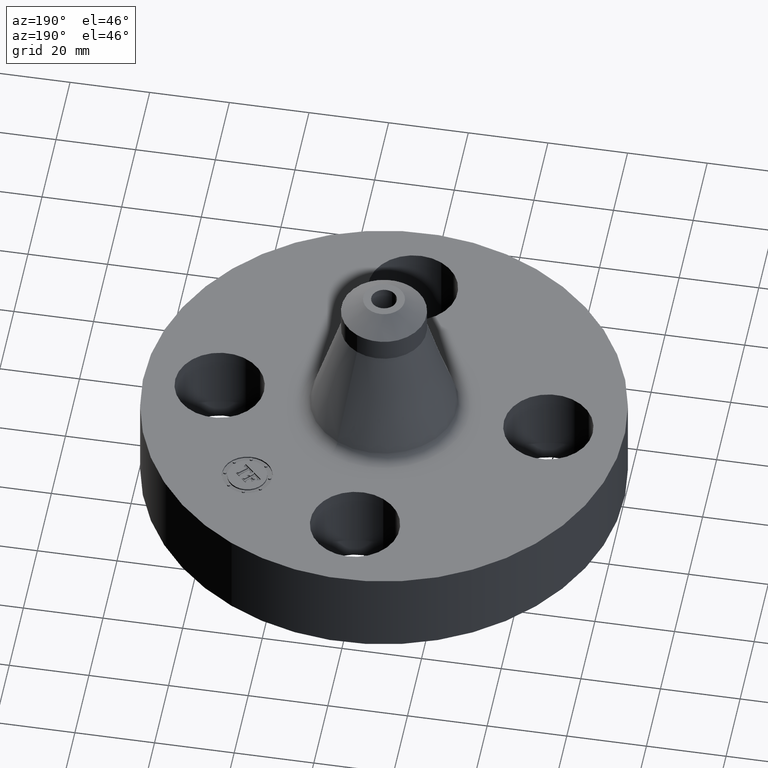
[diagram: clean part render]
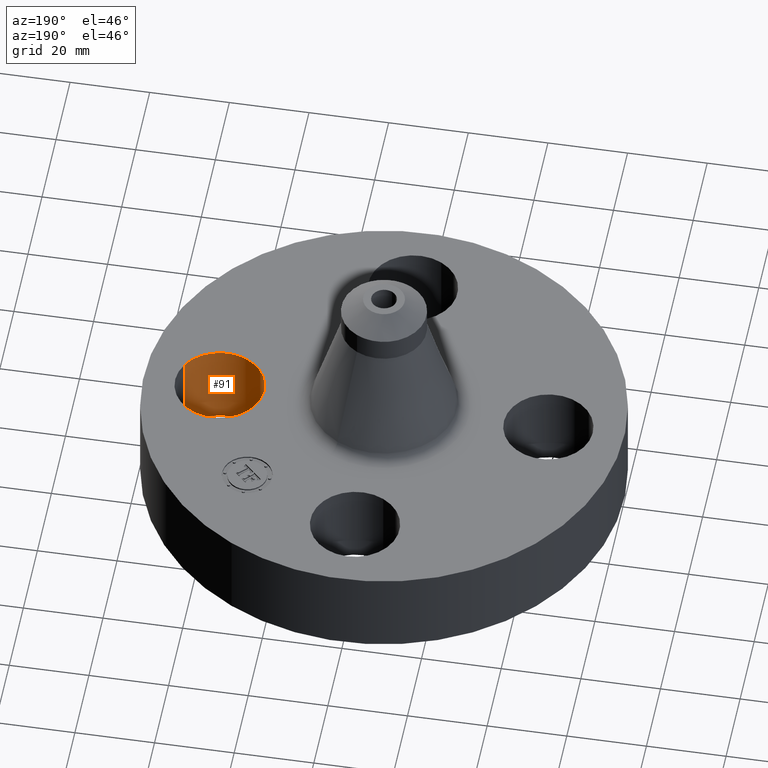
[diagram: same view with one face highlighted and labeled with its STEP entity id]
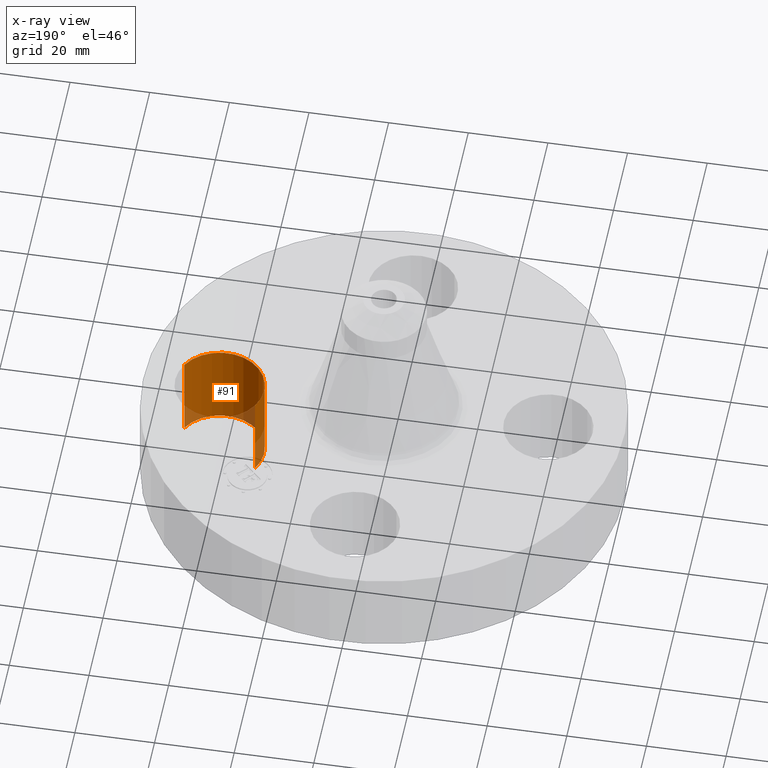
[diagram: x-ray of the same camera — body ghosted, the highlighted face saturated]
A machine part, auxiliary view. The second image highlights one B-rep face of the part: STEP entity #91.
The next image is the same camera in x-ray: the body ghosted, the highlighted face saturated — about 13% of this face is hidden behind the body in this view.
In plain terms, the highlighted cylindrical surface (partial cylindrical patch) has radius 11.176 mm, axis along (0, -0, -1).
Its self-contained STEP definition (entity closure, byte-faithful):
#38=AXIS2_PLACEMENT_3D('Cylinder Axis2P3D',#35,#36,#37) ;
#77=AXIS2_PLACEMENT_3D('Circle Axis2P3D',#75,#76,$) ;
#82=AXIS2_PLACEMENT_3D('Circle Axis2P3D',#80,#81,$) ;
#35=CARTESIAN_POINT('Axis2P3D Location',(1.62500000001,0.,0.87606299213)) ;
#40=CARTESIAN_POINT('Line Origine',(1.23886367277,0.210947236987,0.440000000002)) ;
#44=CARTESIAN_POINT('Vertex',(1.23886367277,0.210947236987,0.)) ;
#46=CARTESIAN_POINT('Vertex',(1.23886367277,0.210947236987,0.880000000004)) ;
#53=CARTESIAN_POINT('Vertex',(2.01113632724,-0.210947236987,0.)) ;
#56=CARTESIAN_POINT('Line Origine',(2.01113632724,-0.210947236987,0.440000000002)) ;
#60=CARTESIAN_POINT('Vertex',(2.01113632724,-0.210947236987,0.880000000004)) ;
#75=CARTESIAN_POINT('Axis2P3D Location',(1.62500000001,0.,0.)) ;
#80=CARTESIAN_POINT('Axis2P3D Location',(1.62500000001,0.,0.880000000004)) ;
#36=DIRECTION('Axis2P3D Direction',(0.,-0.,-0.0393700787402)) ;
#37=DIRECTION('Axis2P3D XDirection',(0.0345504945626,-0.0188750212049,0.)) ;
#41=DIRECTION('Vector Direction',(0.,0.,-0.0393700787402)) ;
#57=DIRECTION('Vector Direction',(0.,0.,-0.0393700787402)) ;
#76=DIRECTION('Axis2P3D Direction',(0.,-0.,-0.0393700787402)) ;
#81=DIRECTION('Axis2P3D Direction',(0.,-0.,-0.0393700787402)) ;
#42=VECTOR('Line Direction',#41,0.0393700787402) ;
#58=VECTOR('Line Direction',#57,0.0393700787402) ;
#86=ORIENTED_EDGE('',*,*,#62,.F.) ;
#87=ORIENTED_EDGE('',*,*,#79,.T.) ;
#88=ORIENTED_EDGE('',*,*,#48,.T.) ;
#89=ORIENTED_EDGE('',*,*,#84,.F.) ;
#91=ADVANCED_FACE('PartBody',(#90),#39,.F.) ;
#78=CIRCLE('generated circle',#77,0.440000000002) ;
#83=CIRCLE('generated circle',#82,0.440000000002) ;
#39=CYLINDRICAL_SURFACE('generated cylinder',#38,0.440000000002) ;
#48=EDGE_CURVE('',#45,#47,#43,.F.) ;
#62=EDGE_CURVE('',#54,#61,#59,.F.) ;
#79=EDGE_CURVE('',#54,#45,#78,.T.) ;
#84=EDGE_CURVE('',#61,#47,#83,.T.) ;
#85=EDGE_LOOP('',(#86,#87,#88,#89)) ;
#90=FACE_OUTER_BOUND('',#85,.T.) ;
#43=LINE('Line',#40,#42) ;
#59=LINE('Line',#56,#58) ;
#45=VERTEX_POINT('',#44) ;
#47=VERTEX_POINT('',#46) ;
#54=VERTEX_POINT('',#53) ;
#61=VERTEX_POINT('',#60) ;